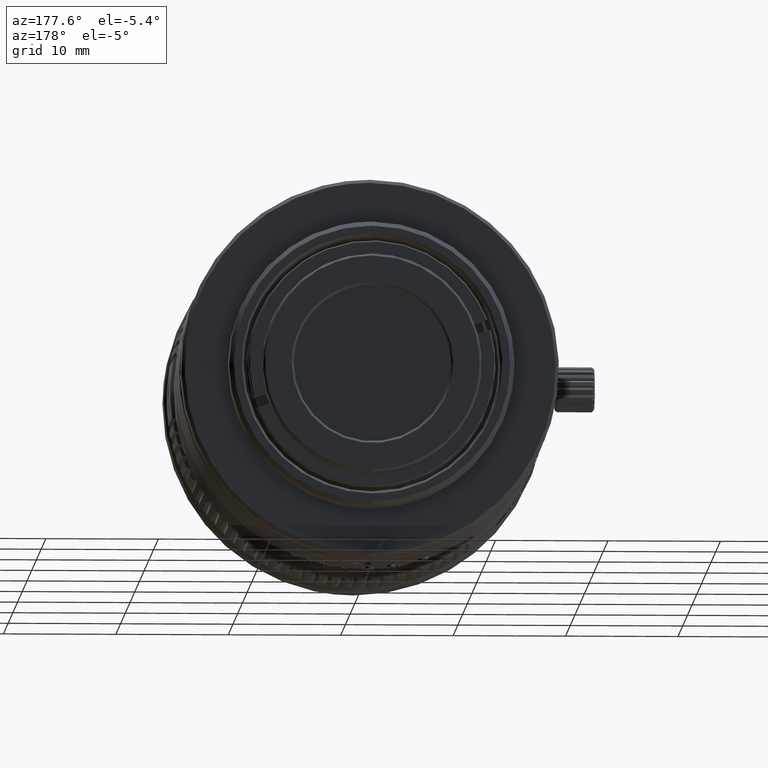
[diagram: clean part render]
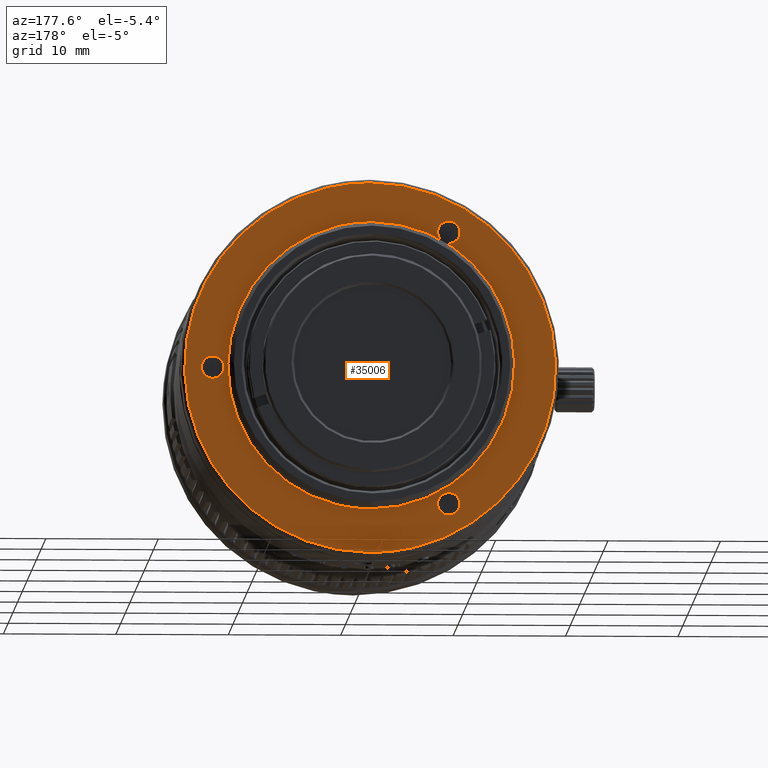
[diagram: same view with one face highlighted and labeled with its STEP entity id]
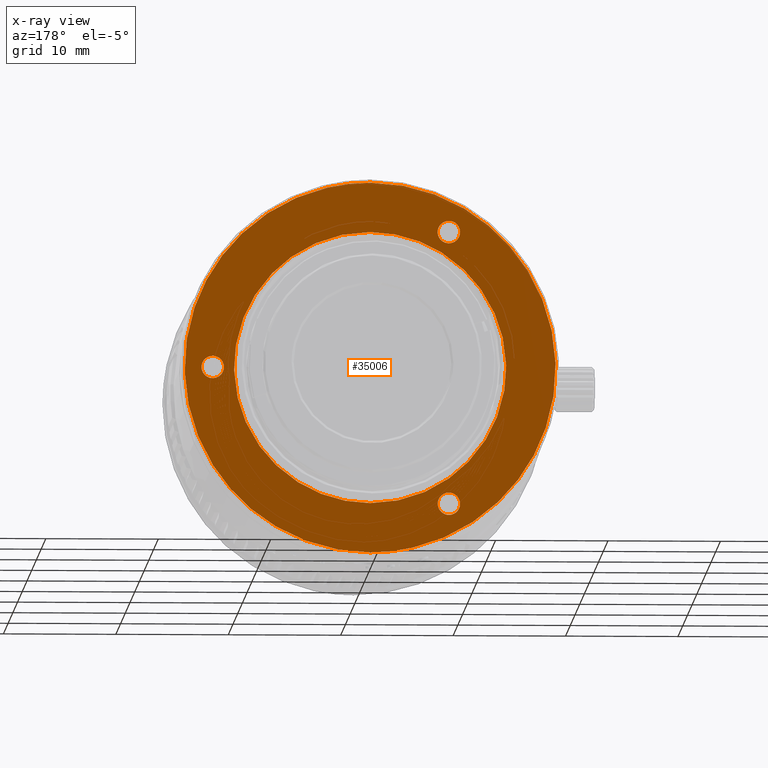
[diagram: x-ray of the same camera — body ghosted, the highlighted face saturated]
A machine part, auxiliary view. The second image highlights one B-rep face of the part: STEP entity #35006.
The next image is the same camera in x-ray: the body ghosted, the highlighted face saturated — about 0% of this face is hidden behind the body in this view.
In plain terms, the highlighted planar face has unit normal (0, -1, 0).
Its self-contained STEP definition (entity closure, byte-faithful):
#98 = CARTESIAN_POINT ( 'NONE',  ( 12.99999999999999822, 22.52999999999659764, 0.2617993877991529605 ) ) ;
#191 = CARTESIAN_POINT ( 'NONE',  ( -15.65727852832222311, 22.52999999999990166, -5.316557616827639166 ) ) ;
#411 = EDGE_LOOP ( 'NONE', ( #14117, #34694 ) ) ;
#458 = CARTESIAN_POINT ( 'NONE',  ( -13.11927398088062979, 22.52999999999991232, 10.06483015361400746 ) ) ;
#461 = CARTESIAN_POINT ( 'NONE',  ( -6.000000000000000000, 22.52999999999731529, 12.38615504077914764 ) ) ;
#607 = CARTESIAN_POINT ( 'NONE',  ( -1.583886296184880971, 22.53000000000324832, -12.09999999999999432 ) ) ;
#1057 = EDGE_CURVE ( 'NONE', #47589, #21851, #16044, .T. ) ;
#1077 = ORIENTED_EDGE ( 'NONE', *, *, #26987, .F. ) ;
#1145 = CARTESIAN_POINT ( 'NONE',  ( 14.26179938779915091, 22.52999999999660474, 1.000000000000000000 ) ) ;
#1150 = CARTESIAN_POINT ( 'NONE',  ( -10.57281529908649986, 22.53000000000326253, 6.093789662487922421 ) ) ;
#1404 = CARTESIAN_POINT ( 'NONE',  ( 14.00000000000000000, 22.52999999999774872, 1.000000000000000000 ) ) ;
#2474 = CARTESIAN_POINT ( 'NONE',  ( -9.878817513121980056E-16, 22.53000000000215408, 12.09999999999999964 ) ) ;
#2513 = CARTESIAN_POINT ( 'NONE',  ( 10.06483015361399325, 22.52999999999991232, 13.11927398088064223 ) ) ;
#2791 = CARTESIAN_POINT ( 'NONE',  ( 1.079922323110572124, 22.52999999999990877, -16.49999768431969827 ) ) ;
#2839 = B_SPLINE_CURVE_WITH_KNOTS ( 'NONE', 3,
 ( #22743, #18670, #35225, #31161, #42309, #52635, #31708, #40124, #15412, #31441 ),
 .UNSPECIFIED., .F., .F.,
 ( 4, 2, 2, 2, 4 ),
 ( 0.000000000000000000, 0.2500000000000000000, 0.5000000000000000000, 0.7500000000000000000, 1.000000000000000000 ),
 .UNSPECIFIED. ) ;
#2889 = B_SPLINE_CURVE_WITH_KNOTS ( 'NONE', 3,
 ( #4306, #16814, #24440, #33117, #45061, #37739, #29034, #36942, #16282, #32856, #458, #7559, #41529, #8615, #20896, #37478, #25221, #41791, #45589, #4571, #191, #21158, #24952, #11927, #33381, #49947, #17079, #37210, #12722, #33647, #24167, #28510, #7828, #20101 ),
 .UNSPECIFIED., .F., .F.,
 ( 4, 2, 2, 2, 2, 2, 2, 2, 2, 2, 2, 2, 2, 2, 2, 2, 4 ),
 ( 0.000000000000000000, 0.06250000000000006939, 0.1250000000000001110, 0.1875000000000001388, 0.2500000000000001665, 0.3125000000000002220, 0.3750000000000002776, 0.4375000000000003886, 0.5000000000000003331, 0.5625000000000004441, 0.6250000000000003331, 0.6875000000000003331, 0.7500000000000002220, 0.8125000000000002220, 0.8750000000000002220, 0.9375000000000001110, 1.000000000000000000 ),
 .UNSPECIFIED. ) ;
#3063 = CARTESIAN_POINT ( 'NONE',  ( 10.06483015361401989, 22.52999999999991232, -13.11927398088056940 ) ) ;
#3288 = CARTESIAN_POINT ( 'NONE',  ( -7.000000000000000000, 22.52999999999834913, -11.12435565298000029 ) ) ;
#3434 = CARTESIAN_POINT ( 'NONE',  ( 1.583886296184829678, 22.53000000000325542, -12.10000000000000142 ) ) ;
#3472 = VERTEX_POINT ( 'NONE', #37191 ) ;
#3601 = CARTESIAN_POINT ( 'NONE',  ( 15.97227246170011483, 22.52999999999991232, 4.278161779985061308 ) ) ;
#3605 = B_SPLINE_CURVE_WITH_KNOTS ( 'NONE', 3,
 ( #1404, #1145, #13127, #29700, #17487, #46266, #50090, #37877, #5488, #13643 ),
 .UNSPECIFIED., .F., .F.,
 ( 4, 2, 2, 2, 4 ),
 ( 0.000000000000000000, 0.2499999999999999445, 0.4999999999999998890, 0.7499999999999998890, 1.000000000000000000 ),
 .UNSPECIFIED. ) ;
#3644 = B_SPLINE_CURVE_WITH_KNOTS ( 'NONE', 3,
 ( #14671, #607, #41939, #31255, #42189, #30235, #35324, #9553, #50361, #42720, #22085, #1150, #37882, #4717, #46521, #13649, #38663, #50095 ),
 .UNSPECIFIED., .F., .F.,
 ( 4, 2, 2, 2, 2, 2, 2, 2, 4 ),
 ( 0.000000000000000000, 0.1250000000000000833, 0.2500000000000001665, 0.3750000000000001110, 0.5000000000000001110, 0.6250000000000001110, 0.7500000000000000000, 0.8750000000000000000, 1.000000000000000000 ),
 .UNSPECIFIED. ) ;
#3950 = CARTESIAN_POINT ( 'NONE',  ( 13.47801334123671602, 22.52999999999660119, -0.8922269036098116057 ) ) ;
#4047 = CARTESIAN_POINT ( 'NONE',  ( -7.000000000000000000, 22.52999999999819991, 11.12435565298000029 ) ) ;
#4306 = CARTESIAN_POINT ( 'NONE',  ( 2.503593607320599879E-15, 22.53000000000000114, 16.49999768431974800 ) ) ;
#4571 = CARTESIAN_POINT ( 'NONE',  ( -15.97227246170010773, 22.52999999999991232, -4.278161779985044433 ) ) ;
#4717 = CARTESIAN_POINT ( 'NONE',  ( -7.436015311696429819, 22.53000000000325898, 9.675968793018013159 ) ) ;
#5100 = CARTESIAN_POINT ( 'NONE',  ( -6.107773096390189949, 22.52999999999731529, 11.60236899421671630 ) ) ;
#5488 = CARTESIAN_POINT ( 'NONE',  ( 14.26179938779915268, 22.52999999999660474, -1.000000000000000666 ) ) ;
#5967 = CARTESIAN_POINT ( 'NONE',  ( -7.000000000000000000, 22.52999999999819991, 13.12435565298000029 ) ) ;
#6238 = CARTESIAN_POINT ( 'NONE',  ( -7.521986658763276878, 22.52999999999731529, 13.01658255658981389 ) ) ;
#6556 = CARTESIAN_POINT ( 'NONE',  ( 5.316557616827579658, 22.52999999999991232, 15.65727852832228528 ) ) ;
#6604 = DIRECTION ( 'NONE',  ( 0.000000000000000000, 0.000000000000000000, -1.000000000000000000 ) ) ;
#6827 = CARTESIAN_POINT ( 'NONE',  ( 2.503593607320599879E-15, 22.53000000000000114, 16.49999768431974800 ) ) ;
#6871 = EDGE_CURVE ( 'NONE', #47307, #31148, #30254, .T. ) ;
#6906 = VERTEX_POINT ( 'NONE', #8354 ) ;
#7029 = EDGE_LOOP ( 'NONE', ( #22616, #46261 ) ) ;
#7471 = CARTESIAN_POINT ( 'NONE',  ( 7.436015311696451136, 22.53000000000325187, -9.675968793017993619 ) ) ;
#7559 = CARTESIAN_POINT ( 'NONE',  ( -14.31921937426784019, 22.52999999999990877, 8.268984962986777987 ) ) ;
#7728 = CARTESIAN_POINT ( 'NONE',  ( 13.10777309639018995, 22.52999999999660119, 0.5219866587632859822 ) ) ;
#7735 = CARTESIAN_POINT ( 'NONE',  ( 11.78506938768661172, 22.53000000000325542, -3.167149400747304444 ) ) ;
#7828 = CARTESIAN_POINT ( 'NONE',  ( -1.079922323110499960, 22.52999999999990166, -16.49999768431969471 ) ) ;
#8354 = CARTESIAN_POINT ( 'NONE',  ( 14.00000000000000000, 22.52999999999774872, -1.000000000000000000 ) ) ;
#8445 = B_SPLINE_CURVE_WITH_KNOTS ( 'NONE', 3,
 ( #32759, #16187, #3950, #49590, #41697, #98, #7728, #37118, #49052, #46028 ),
 .UNSPECIFIED., .F., .F.,
 ( 4, 2, 2, 2, 4 ),
 ( 0.000000000000000000, 0.2500000000000000000, 0.5000000000000000000, 0.7500000000000000000, 1.000000000000000000 ),
 .UNSPECIFIED. ) ;
#8615 = CARTESIAN_POINT ( 'NONE',  ( -15.65727852832227107, 22.52999999999991942, 5.316557616827586763 ) ) ;
#8916 = CARTESIAN_POINT ( 'NONE',  ( -6.000000000000000000, 22.52999999999755687, -11.86255626518085293 ) ) ;
#9553 = CARTESIAN_POINT ( 'NONE',  ( -11.78506938768662948, 22.53000000000325187, -3.167149400747254706 ) ) ;
#9697 = VERTEX_POINT ( 'NONE', #39195 ) ;
#10308 = CARTESIAN_POINT ( 'NONE',  ( -7.892226903609814492, 22.52999999999731173, 11.60236899421671986 ) ) ;
#10398 = VERTEX_POINT ( 'NONE', #12381 ) ;
#10858 = CARTESIAN_POINT ( 'NONE',  ( -7.261799387799145578, 22.52999999999731529, 13.12435565298000206 ) ) ;
#11163 = B_SPLINE_CURVE_WITH_KNOTS ( 'NONE', 3,
 ( #36851, #48783, #53420, #11288, #11567, #44160, #28145, #23529, #40102, #23804, #7735, #44700, #32766, #7471, #24076, #49332, #3434, #36582 ),
 .UNSPECIFIED., .F., .F.,
 ( 4, 2, 2, 2, 2, 2, 2, 2, 4 ),
 ( 0.000000000000000000, 0.1249999999999999167, 0.2499999999999998335, 0.3749999999999998335, 0.4999999999999998890, 0.6249999999999998890, 0.7499999999999998890, 0.8750000000000000000, 1.000000000000000000 ),
 .UNSPECIFIED. ) ;
#11190 = CARTESIAN_POINT ( 'NONE',  ( 10.90363985431856797, 22.52999999999991232, 12.43088064997106734 ) ) ;
#11288 = CARTESIAN_POINT ( 'NONE',  ( 6.093789662487885117, 22.53000000000325187, 10.57281529908651940 ) ) ;
#11567 = CARTESIAN_POINT ( 'NONE',  ( 7.436015311696476004, 22.53000000000325898, 9.675968793017974079 ) ) ;
#11927 = CARTESIAN_POINT ( 'NONE',  ( -13.11927398088056762, 22.52999999999990521, -10.06483015361402522 ) ) ;
#12056 = EDGE_CURVE ( 'NONE', #21851, #47589, #2889, .T. ) ;
#12196 = CARTESIAN_POINT ( 'NONE',  ( -6.478013341236718681, 22.52999999999731529, 13.01658255658981034 ) ) ;
#12381 = CARTESIAN_POINT ( 'NONE',  ( -7.000000000000000000, 22.52999999999834913, -13.12435565298000029 ) ) ;
#12482 = CARTESIAN_POINT ( 'NONE',  ( -7.000000000000000000, 22.52999999999819991, 13.12435565298000029 ) ) ;
#12497 = CARTESIAN_POINT ( 'NONE',  ( -7.000000000000000000, 22.52999999999834913, -13.12435565298000029 ) ) ;
#12722 = CARTESIAN_POINT ( 'NONE',  ( -7.311993878875345132, 22.52999999999990877, -14.83074176573098057 ) ) ;
#13127 = CARTESIAN_POINT ( 'NONE',  ( 14.52198665876328398, 22.52999999999660119, 0.8922269036098124939 ) ) ;
#13643 = CARTESIAN_POINT ( 'NONE',  ( 14.00000000000000000, 22.52999999999774872, -1.000000000000000000 ) ) ;
#13649 = CARTESIAN_POINT ( 'NONE',  ( -3.167149400747245380, 22.53000000000325542, 11.78506938768663304 ) ) ;
#14117 = ORIENTED_EDGE ( 'NONE', *, *, #25607, .F. ) ;
#14671 = CARTESIAN_POINT ( 'NONE',  ( 9.878817513121980056E-16, 22.53000000000215408, -12.09999999999999964 ) ) ;
#14734 = CARTESIAN_POINT ( 'NONE',  ( 14.31921937426781177, 22.52999999999990877, 8.268984962986838383 ) ) ;
#15005 = CARTESIAN_POINT ( 'NONE',  ( 4.278161779985017787, 22.52999999999990877, -15.97227246170009352 ) ) ;
#15276 = CARTESIAN_POINT ( 'NONE',  ( 16.49999768431972313, 22.52999999999990877, -1.079922323110528826 ) ) ;
#15412 = CARTESIAN_POINT ( 'NONE',  ( -7.261799387799145578, 22.52999999999755687, -11.12435565297999673 ) ) ;
#15612 = FACE_BOUND ( 'NONE', #7029, .T. ) ;
#15883 = PLANE ( 'NONE',  #49681 ) ;
#16044 = B_SPLINE_CURVE_WITH_KNOTS ( 'NONE', 3,
 ( #23981, #2791, #32146, #15005, #35933, #40281, #48684, #3063, #48400, #19910, #35660, #23434, #28320, #44065, #40816, #44875, #15276, #19637, #52788, #3601, #20182, #51958, #14734, #31317, #47858, #11190, #2513, #27224, #43786, #6556, #19088, #31590, #48129, #6827 ),
 .UNSPECIFIED., .F., .F.,
 ( 4, 2, 2, 2, 2, 2, 2, 2, 2, 2, 2, 2, 2, 2, 2, 2, 4 ),
 ( 0.000000000000000000, 0.06250000000000001388, 0.1250000000000000000, 0.1874999999999999722, 0.2499999999999999722, 0.3124999999999999445, 0.3749999999999999445, 0.4375000000000000000, 0.5000000000000000000, 0.5625000000000000000, 0.6250000000000000000, 0.6875000000000000000, 0.7500000000000000000, 0.8125000000000001110, 0.8750000000000001110, 0.9375000000000001110, 1.000000000000000000 ),
 .UNSPECIFIED. ) ;
#16187 = CARTESIAN_POINT ( 'NONE',  ( 13.73820061220084554, 22.52999999999659408, -0.9999999999999995559 ) ) ;
#16282 = CARTESIAN_POINT ( 'NONE',  ( -10.90363985431862126, 22.52999999999991232, 12.43088064997101760 ) ) ;
#16814 = CARTESIAN_POINT ( 'NONE',  ( -1.079922323110606985, 22.52999999999990877, 16.49999768431974090 ) ) ;
#17079 = CARTESIAN_POINT ( 'NONE',  ( -10.06483015361395772, 22.52999999999990877, -13.11927398088061736 ) ) ;
#17080 = CARTESIAN_POINT ( 'NONE',  ( -6.478013341236719569, 22.52999999999731529, 11.23212874937018668 ) ) ;
#17487 = CARTESIAN_POINT ( 'NONE',  ( 15.00000000000000355, 22.52999999999660474, 0.2617993877991486862 ) ) ;
#17993 = EDGE_CURVE ( 'NONE', #18675, #3472, #11163, .T. ) ;
#18670 = CARTESIAN_POINT ( 'NONE',  ( -7.261799387799149130, 22.52999999999755687, -13.12435565297999851 ) ) ;
#18675 = VERTEX_POINT ( 'NONE', #2474 ) ;
#19088 = CARTESIAN_POINT ( 'NONE',  ( 4.278161779984985813, 22.52999999999990877, 15.97227246170015214 ) ) ;
#19637 = CARTESIAN_POINT ( 'NONE',  ( 16.49999768431971603, 22.52999999999991232, 1.079922323110615423 ) ) ;
#19910 = CARTESIAN_POINT ( 'NONE',  ( 12.43088064997103004, 22.52999999999990521, -10.90363985431855731 ) ) ;
#20101 = CARTESIAN_POINT ( 'NONE',  ( -1.347111290002725985E-15, 22.53000000000000114, -16.49999768431970182 ) ) ;
#20182 = CARTESIAN_POINT ( 'NONE',  ( 15.65727852832224443, 22.52999999999990877, 5.316557616827651600 ) ) ;
#20896 = CARTESIAN_POINT ( 'NONE',  ( -15.97227246170013615, 22.52999999999990877, 4.278161779984989366 ) ) ;
#21158 = CARTESIAN_POINT ( 'NONE',  ( -14.83074176573095393, 22.52999999999991232, -7.311993878875431285 ) ) ;
#21851 = VERTEX_POINT ( 'NONE', #22646 ) ;
#22085 = CARTESIAN_POINT ( 'NONE',  ( -11.78506938768660461, 22.53000000000325542, 3.167149400747332866 ) ) ;
#22616 = ORIENTED_EDGE ( 'NONE', *, *, #45469, .F. ) ;
#22646 = CARTESIAN_POINT ( 'NONE',  ( 2.503593607320599879E-15, 22.53000000000000114, 16.49999768431974800 ) ) ;
#22743 = CARTESIAN_POINT ( 'NONE',  ( -7.000000000000000000, 22.52999999999834913, -13.12435565298000029 ) ) ;
#23204 = FACE_OUTER_BOUND ( 'NONE', #49158, .T. ) ;
#23434 = CARTESIAN_POINT ( 'NONE',  ( 14.31921937426782776, 22.52999999999991587, -8.268984962986758447 ) ) ;
#23482 = FACE_BOUND ( 'NONE', #44905, .T. ) ;
#23529 = CARTESIAN_POINT ( 'NONE',  ( 11.78506938768662593, 22.53000000000325542, 3.167149400747278687 ) ) ;
#23760 = FACE_BOUND ( 'NONE', #38051, .T. ) ;
#23804 = CARTESIAN_POINT ( 'NONE',  ( 12.09999999999999787, 22.53000000000325187, -1.583886296184867870 ) ) ;
#23981 = CARTESIAN_POINT ( 'NONE',  ( -1.347111290002725985E-15, 22.53000000000000114, -16.49999768431970182 ) ) ;
#24076 = CARTESIAN_POINT ( 'NONE',  ( 6.093789662487866465, 22.53000000000325542, -10.57281529908652828 ) ) ;
#24167 = CARTESIAN_POINT ( 'NONE',  ( -4.278161779984949398, 22.52999999999990877, -15.97227246170010773 ) ) ;
#24391 = ORIENTED_EDGE ( 'NONE', *, *, #40170, .F. ) ;
#24440 = CARTESIAN_POINT ( 'NONE',  ( -2.159817943013631059, 22.52999999999990166, 16.39363724923623167 ) ) ;
#24952 = CARTESIAN_POINT ( 'NONE',  ( -14.31921937426779579, 22.52999999999990877, -8.268984962986808185 ) ) ;
#25221 = CARTESIAN_POINT ( 'NONE',  ( -16.49999768431972669, 22.52999999999991232, 1.079922323110542370 ) ) ;
#25607 = EDGE_CURVE ( 'NONE', #3472, #18675, #3644, .T. ) ;
#25785 = CARTESIAN_POINT ( 'NONE',  ( -6.107773096390189949, 22.52999999999755687, -12.64634231174328427 ) ) ;
#26987 = EDGE_CURVE ( 'NONE', #31148, #47307, #44748, .T. ) ;
#27224 = CARTESIAN_POINT ( 'NONE',  ( 8.268984962986762000, 22.52999999999991232, 14.31921937426786329 ) ) ;
#27274 = CARTESIAN_POINT ( 'NONE',  ( 17.17187952609999968, 22.53000000000000114, -17.16000000000000014 ) ) ;
#27295 = EDGE_CURVE ( 'NONE', #6906, #38579, #8445, .T. ) ;
#27729 = CARTESIAN_POINT ( 'NONE',  ( -7.261799387799149130, 22.52999999999731529, 11.12435565297999851 ) ) ;
#28145 = CARTESIAN_POINT ( 'NONE',  ( 10.57281529908652828, 22.53000000000325898, 6.093789662487875347 ) ) ;
#28320 = CARTESIAN_POINT ( 'NONE',  ( 14.83074176573098413, 22.52999999999990521, -7.311993878875361119 ) ) ;
#28510 = CARTESIAN_POINT ( 'NONE',  ( -2.159817943013530694, 22.52999999999991232, -16.39363724923620325 ) ) ;
#29034 = CARTESIAN_POINT ( 'NONE',  ( -8.268984962986831277, 22.52999999999991232, 14.31921937426782598 ) ) ;
#29296 = CARTESIAN_POINT ( 'NONE',  ( -5.999999999999999112, 22.52999999999731529, 11.86255626518085116 ) ) ;
#29598 = CARTESIAN_POINT ( 'NONE',  ( -6.107773096390187284, 22.52999999999755332, -11.60236899421671630 ) ) ;
#29700 = CARTESIAN_POINT ( 'NONE',  ( 14.89222690360981893, 22.52999999999660474, 0.5219866587632817634 ) ) ;
#30235 = CARTESIAN_POINT ( 'NONE',  ( -9.675968793017998948, 22.53000000000324121, -7.436015311696444918 ) ) ;
#30254 = B_SPLINE_CURVE_WITH_KNOTS ( 'NONE', 3,
 ( #52982, #46388, #12196, #45332, #461, #29296, #5100, #17080, #49948, #4047 ),
 .UNSPECIFIED., .F., .F.,
 ( 4, 2, 2, 2, 4 ),
 ( 0.000000000000000000, 0.2500000000000000000, 0.5000000000000000000, 0.7500000000000000000, 1.000000000000000000 ),
 .UNSPECIFIED. ) ;
#30312 = ORIENTED_EDGE ( 'NONE', *, *, #27295, .F. ) ;
#30466 = EDGE_CURVE ( 'NONE', #9697, #10398, #49905, .T. ) ;
#31148 = VERTEX_POINT ( 'NONE', #44701 ) ;
#31161 = CARTESIAN_POINT ( 'NONE',  ( -7.892226903609814492, 22.52999999999755332, -12.64634231174327539 ) ) ;
#31255 = CARTESIAN_POINT ( 'NONE',  ( -6.093789662487904657, 22.53000000000324832, -10.57281529908650519 ) ) ;
#31317 = CARTESIAN_POINT ( 'NONE',  ( 13.11927398088058361, 22.52999999999990877, 10.06483015361405720 ) ) ;
#31391 = CARTESIAN_POINT ( 'NONE',  ( -1.347111290002725985E-15, 22.53000000000000114, -16.49999768431970182 ) ) ;
#31441 = CARTESIAN_POINT ( 'NONE',  ( -7.000000000000000000, 22.52999999999834913, -11.12435565298000029 ) ) ;
#31590 = CARTESIAN_POINT ( 'NONE',  ( 2.159817943013565777, 22.52999999999991587, 16.39363724923624233 ) ) ;
#31708 = CARTESIAN_POINT ( 'NONE',  ( -7.892226903609810940, 22.52999999999755687, -11.60236899421671453 ) ) ;
#31807 = CARTESIAN_POINT ( 'NONE',  ( -7.000000000000000000, 22.52999999999819991, 11.12435565298000029 ) ) ;
#32146 = CARTESIAN_POINT ( 'NONE',  ( 2.159817943013596420, 22.52999999999991587, -16.39363724923619259 ) ) ;
#32195 = DIRECTION ( 'NONE',  ( 0.000000000000000000, -1.000000000000000000, 0.000000000000000000 ) ) ;
#32372 = CARTESIAN_POINT ( 'NONE',  ( -6.478013341236718681, 22.52999999999756042, -11.23212874937019201 ) ) ;
#32759 = CARTESIAN_POINT ( 'NONE',  ( 14.00000000000000000, 22.52999999999774872, -1.000000000000000000 ) ) ;
#32766 = CARTESIAN_POINT ( 'NONE',  ( 9.675968793017968750, 22.53000000000325542, -7.436015311696484886 ) ) ;
#32856 = CARTESIAN_POINT ( 'NONE',  ( -12.43088064997104780, 22.52999999999991232, 10.90363985431858218 ) ) ;
#33117 = CARTESIAN_POINT ( 'NONE',  ( -4.278161779985051538, 22.52999999999990521, 15.97227246170013615 ) ) ;
#33381 = CARTESIAN_POINT ( 'NONE',  ( -12.43088064997097320, 22.52999999999990521, -10.90363985431861593 ) ) ;
#33414 = CARTESIAN_POINT ( 'NONE',  ( -6.478013341236719569, 22.52999999999756398, -13.01658255658981389 ) ) ;
#33647 = CARTESIAN_POINT ( 'NONE',  ( -5.316557616827545019, 22.52999999999991232, -15.65727852832224443 ) ) ;
#34694 = ORIENTED_EDGE ( 'NONE', *, *, #17993, .F. ) ;
#35006 = ADVANCED_FACE ( 'NONE', ( #23204, #43837, #23760, #15612, #23482 ), #15883, .F. ) ;
#35225 = CARTESIAN_POINT ( 'NONE',  ( -7.521986658763284872, 22.52999999999756042, -13.01658255658981211 ) ) ;
#35324 = CARTESIAN_POINT ( 'NONE',  ( -10.57281529908653361, 22.53000000000325187, -6.093789662487851366 ) ) ;
#35609 = CARTESIAN_POINT ( 'NONE',  ( -8.000000000000000000, 22.52999999999731529, 11.86255626518085293 ) ) ;
#35660 = CARTESIAN_POINT ( 'NONE',  ( 13.11927398088060137, 22.52999999999990166, -10.06483015361397548 ) ) ;
#35933 = CARTESIAN_POINT ( 'NONE',  ( 5.316557616827608967, 22.52999999999991232, -15.65727852832222311 ) ) ;
#36582 = CARTESIAN_POINT ( 'NONE',  ( 9.878817513121980056E-16, 22.53000000000215408, -12.09999999999999964 ) ) ;
#36851 = CARTESIAN_POINT ( 'NONE',  ( -9.878817513121980056E-16, 22.53000000000215408, 12.09999999999999964 ) ) ;
#36942 = CARTESIAN_POINT ( 'NONE',  ( -10.06483015361405187, 22.52999999999991232, 13.11927398088059959 ) ) ;
#37118 = CARTESIAN_POINT ( 'NONE',  ( 13.47801334123672135, 22.52999999999659764, 0.8922269036098153805 ) ) ;
#37191 = CARTESIAN_POINT ( 'NONE',  ( 9.878817513121980056E-16, 22.53000000000215408, -12.09999999999999964 ) ) ;
#37210 = CARTESIAN_POINT ( 'NONE',  ( -8.268984962986726472, 22.52999999999990877, -14.31921937426783131 ) ) ;
#37478 = CARTESIAN_POINT ( 'NONE',  ( -16.39363724923622812, 22.52999999999991587, 2.159817943013569330 ) ) ;
#37739 = CARTESIAN_POINT ( 'NONE',  ( -7.311993878875432173, 22.52999999999991232, 14.83074176573099123 ) ) ;
#37877 = CARTESIAN_POINT ( 'NONE',  ( 14.52198665876327865, 22.52999999999660119, -0.8922269036098139372 ) ) ;
#37882 = CARTESIAN_POINT ( 'NONE',  ( -9.675968793017952763, 22.53000000000326253, 7.436015311696513308 ) ) ;
#38051 = EDGE_LOOP ( 'NONE', ( #30312, #24391 ) ) ;
#38579 = VERTEX_POINT ( 'NONE', #50908 ) ;
#38663 = CARTESIAN_POINT ( 'NONE',  ( -1.583886296184804587, 22.53000000000325187, 12.10000000000000853 ) ) ;
#39133 = CARTESIAN_POINT ( 'NONE',  ( -7.892226903609810940, 22.52999999999731529, 12.64634231174328782 ) ) ;
#39195 = CARTESIAN_POINT ( 'NONE',  ( -7.000000000000000000, 22.52999999999834913, -11.12435565298000029 ) ) ;
#39408 = CARTESIAN_POINT ( 'NONE',  ( -8.000000000000001776, 22.52999999999731529, 12.38615504077915297 ) ) ;
#40102 = CARTESIAN_POINT ( 'NONE',  ( 12.10000000000000142, 22.53000000000325542, 1.583886296184843223 ) ) ;
#40124 = CARTESIAN_POINT ( 'NONE',  ( -7.521986658763276878, 22.52999999999756398, -11.23212874937018491 ) ) ;
#40170 = EDGE_CURVE ( 'NONE', #38579, #6906, #3605, .T. ) ;
#40281 = CARTESIAN_POINT ( 'NONE',  ( 7.311993878875403752, 22.52999999999991232, -14.83074176573095215 ) ) ;
#40816 = CARTESIAN_POINT ( 'NONE',  ( 15.97227246170012549, 22.52999999999990877, -4.278161779984976931 ) ) ;
#41529 = CARTESIAN_POINT ( 'NONE',  ( -14.83074176573100367, 22.52999999999991232, 7.311993878875383324 ) ) ;
#41697 = CARTESIAN_POINT ( 'NONE',  ( 13.00000000000000178, 22.52999999999660119, -0.2617993877991462437 ) ) ;
#41791 = CARTESIAN_POINT ( 'NONE',  ( -16.49999768431971603, 22.52999999999991232, -1.079922323110603433 ) ) ;
#41939 = CARTESIAN_POINT ( 'NONE',  ( -3.167149400747313326, 22.53000000000324476, -11.78506938768660817 ) ) ;
#42189 = CARTESIAN_POINT ( 'NONE',  ( -7.436015311696491992, 22.53000000000325187, -9.675968793017961644 ) ) ;
#42309 = CARTESIAN_POINT ( 'NONE',  ( -8.000000000000000000, 22.52999999999755687, -12.38615504077914764 ) ) ;
#42720 = CARTESIAN_POINT ( 'NONE',  ( -12.09999999999999254, 22.53000000000325187, 1.583886296184895848 ) ) ;
#43786 = CARTESIAN_POINT ( 'NONE',  ( 7.311993878875376218, 22.52999999999990877, 14.83074176573101788 ) ) ;
#43837 = FACE_BOUND ( 'NONE', #411, .T. ) ;
#44065 = CARTESIAN_POINT ( 'NONE',  ( 15.65727852832225331, 22.52999999999991232, -5.316557616827565447 ) ) ;
#44160 = CARTESIAN_POINT ( 'NONE',  ( 9.675968793017984737, 22.53000000000325187, 7.436015311696464458 ) ) ;
#44292 = CARTESIAN_POINT ( 'NONE',  ( -7.521986658763284872, 22.52999999999731529, 11.23212874937019023 ) ) ;
#44482 = ORIENTED_EDGE ( 'NONE', *, *, #6871, .F. ) ;
#44700 = CARTESIAN_POINT ( 'NONE',  ( 10.57281529908651230, 22.53000000000325187, -6.093789662487897552 ) ) ;
#44701 = CARTESIAN_POINT ( 'NONE',  ( -7.000000000000000000, 22.52999999999819991, 11.12435565298000029 ) ) ;
#44748 = B_SPLINE_CURVE_WITH_KNOTS ( 'NONE', 3,
 ( #31807, #27729, #44292, #10308, #35609, #39408, #39133, #6238, #10858, #5967 ),
 .UNSPECIFIED., .F., .F.,
 ( 4, 2, 2, 2, 4 ),
 ( 0.000000000000000000, 0.2500000000000000000, 0.5000000000000000000, 0.7500000000000000000, 1.000000000000000000 ),
 .UNSPECIFIED. ) ;
#44875 = CARTESIAN_POINT ( 'NONE',  ( 16.39363724923622101, 22.52999999999991232, -2.159817943013554675 ) ) ;
#44905 = EDGE_LOOP ( 'NONE', ( #1077, #44482 ) ) ;
#45061 = CARTESIAN_POINT ( 'NONE',  ( -5.316557616827636501, 22.52999999999990877, 15.65727852832226397 ) ) ;
#45332 = CARTESIAN_POINT ( 'NONE',  ( -6.107773096390187284, 22.52999999999731173, 12.64634231174328072 ) ) ;
#45469 = EDGE_CURVE ( 'NONE', #10398, #9697, #2839, .T. ) ;
#45589 = CARTESIAN_POINT ( 'NONE',  ( -16.39363724923621035, 22.52999999999990877, -2.159817943013624841 ) ) ;
#46028 = CARTESIAN_POINT ( 'NONE',  ( 14.00000000000000000, 22.52999999999774872, 1.000000000000000000 ) ) ;
#46261 = ORIENTED_EDGE ( 'NONE', *, *, #30466, .F. ) ;
#46266 = CARTESIAN_POINT ( 'NONE',  ( 15.00000000000000533, 22.52999999999660474, -0.2617993877991507956 ) ) ;
#46388 = CARTESIAN_POINT ( 'NONE',  ( -6.738200612200850870, 22.52999999999731529, 13.12435565297999851 ) ) ;
#46521 = CARTESIAN_POINT ( 'NONE',  ( -6.093789662487842484, 22.53000000000325542, 10.57281529908654072 ) ) ;
#47307 = VERTEX_POINT ( 'NONE', #12482 ) ;
#47589 = VERTEX_POINT ( 'NONE', #31391 ) ;
#47858 = CARTESIAN_POINT ( 'NONE',  ( 12.43088064997100339, 22.52999999999990877, 10.90363985431863370 ) ) ;
#48129 = CARTESIAN_POINT ( 'NONE',  ( 1.079922323110535043, 22.52999999999990521, 16.49999768431973735 ) ) ;
#48400 = CARTESIAN_POINT ( 'NONE',  ( 10.90363985431859639, 22.52999999999991587, -12.43088064997098563 ) ) ;
#48684 = CARTESIAN_POINT ( 'NONE',  ( 8.268984962986793974, 22.52999999999990877, -14.31921937426779046 ) ) ;
#48783 = CARTESIAN_POINT ( 'NONE',  ( 1.583886296184854992, 22.53000000000324476, 12.09999999999999787 ) ) ;
#49052 = CARTESIAN_POINT ( 'NONE',  ( 13.73820061220085442, 22.52999999999660119, 1.000000000000001110 ) ) ;
#49158 = EDGE_LOOP ( 'NONE', ( #51957, #53116 ) ) ;
#49332 = CARTESIAN_POINT ( 'NONE',  ( 3.167149400747271137, 22.53000000000325187, -11.78506938768662771 ) ) ;
#49590 = CARTESIAN_POINT ( 'NONE',  ( 13.10777309639018817, 22.52999999999659764, -0.5219866587632798760 ) ) ;
#49681 = AXIS2_PLACEMENT_3D ( 'NONE', #27274, #32195, #6604 ) ;
#49725 = CARTESIAN_POINT ( 'NONE',  ( -5.999999999999999112, 22.52999999999756398, -12.38615504077915119 ) ) ;
#49905 = B_SPLINE_CURVE_WITH_KNOTS ( 'NONE', 3,
 ( #3288, #53018, #32372, #29598, #8916, #49725, #25785, #33414, #50774, #12497 ),
 .UNSPECIFIED., .F., .F.,
 ( 4, 2, 2, 2, 4 ),
 ( 0.000000000000000000, 0.2500000000000000000, 0.5000000000000000000, 0.7500000000000000000, 1.000000000000000000 ),
 .UNSPECIFIED. ) ;
#49947 = CARTESIAN_POINT ( 'NONE',  ( -10.90363985431853955, 22.52999999999991232, -12.43088064997104247 ) ) ;
#49948 = CARTESIAN_POINT ( 'NONE',  ( -6.738200612200853534, 22.52999999999731529, 11.12435565298000029 ) ) ;
#50090 = CARTESIAN_POINT ( 'NONE',  ( 14.89222690360981360, 22.52999999999660119, -0.5219866587632836508 ) ) ;
#50095 = CARTESIAN_POINT ( 'NONE',  ( -9.878817513121980056E-16, 22.53000000000215408, 12.09999999999999964 ) ) ;
#50361 = CARTESIAN_POINT ( 'NONE',  ( -12.10000000000000320, 22.53000000000325542, -1.583886296184814357 ) ) ;
#50774 = CARTESIAN_POINT ( 'NONE',  ( -6.738200612200853534, 22.52999999999755687, -13.12435565298000029 ) ) ;
#50908 = CARTESIAN_POINT ( 'NONE',  ( 14.00000000000000000, 22.52999999999774872, 1.000000000000000000 ) ) ;
#51957 = ORIENTED_EDGE ( 'NONE', *, *, #12056, .F. ) ;
#51958 = CARTESIAN_POINT ( 'NONE',  ( 14.83074176573097169, 22.52999999999991232, 7.311993878875447272 ) ) ;
#52635 = CARTESIAN_POINT ( 'NONE',  ( -8.000000000000001776, 22.52999999999756398, -11.86255626518084583 ) ) ;
#52788 = CARTESIAN_POINT ( 'NONE',  ( 16.39363724923621390, 22.52999999999990877, 2.159817943013640829 ) ) ;
#52982 = CARTESIAN_POINT ( 'NONE',  ( -7.000000000000000000, 22.52999999999819991, 13.12435565298000029 ) ) ;
#53018 = CARTESIAN_POINT ( 'NONE',  ( -6.738200612200850870, 22.52999999999755687, -11.12435565297999851 ) ) ;
#53116 = ORIENTED_EDGE ( 'NONE', *, *, #1057, .F. ) ;
#53420 = CARTESIAN_POINT ( 'NONE',  ( 3.167149400747292454, 22.53000000000325187, 11.78506938768661882 ) ) ;